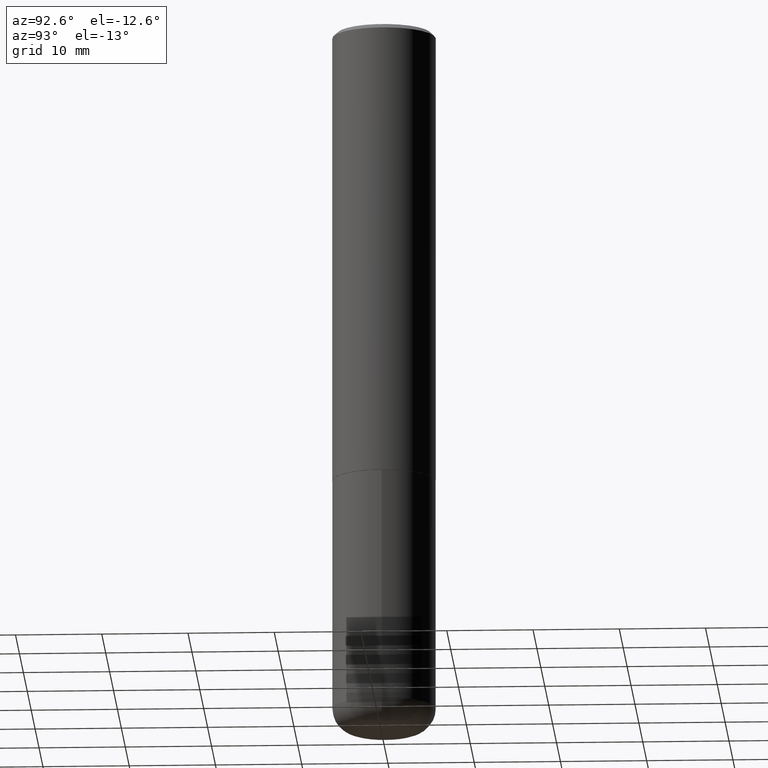
[diagram: clean part render]
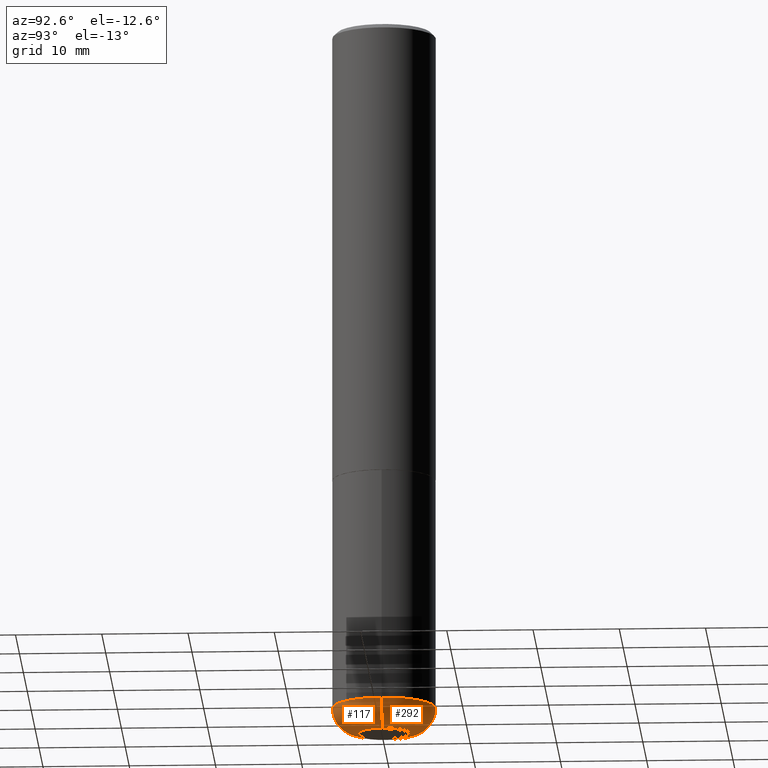
[diagram: same view with one multi-face feature highlighted, each face labeled with its STEP entity id]
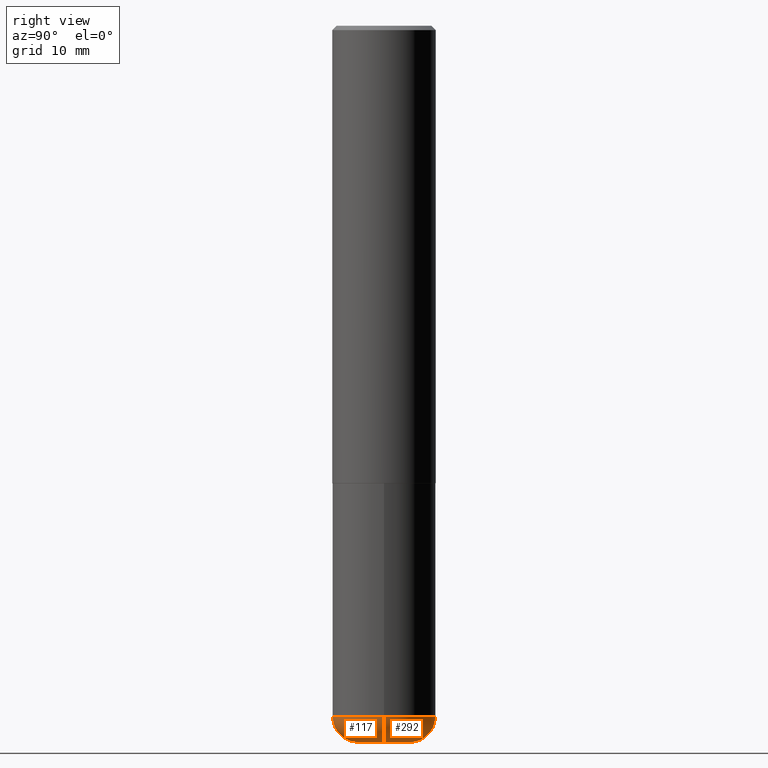
[diagram: same view with one multi-face feature highlighted, each face labeled with its STEP entity id]
A machine part, auxiliary view. The highlighted faces form ONE feature: a constant-radius fillet chain: 2 tangent blend faces with common blend radius 2.9997 mm. The faces share edges in the B-rep.
A second angle (right view) of the same feature is appended — it is thin or edge-on in the first view.
Their STEP definitions:
[1] entity #292 (Torus):
#22 = CIRCLE ( 'NONE', #170, 0.1181000000000000105 ) ;
#28 = CARTESIAN_POINT ( 'NONE',  ( 0.1180999999999999966, -1.182145751705512057E-14, -3.149600000000000399 ) ) ;
#38 = VERTEX_POINT ( 'NONE', #336 ) ;
#54 = CARTESIAN_POINT ( 'NONE',  ( -0.2361999999999998545, -9.318467682955017493E-15, -3.149600000000000399 ) ) ;
#60 = CIRCLE ( 'NONE', #299, 0.1180999999999997191 ) ;
#82 = AXIS2_PLACEMENT_3D ( 'NONE', #222, #350, #320 ) ;
#101 = ORIENTED_EDGE ( 'NONE', *, *, #257, .T. ) ;
#122 = DIRECTION ( 'NONE',  ( -2.445468806185136597E-29, 3.491481338843145583E-15, 1.000000000000000000 ) ) ;
#156 = DIRECTION ( 'NONE',  ( 1.000000000000000000, -6.982962677686273021E-15, 0.000000000000000000 ) ) ;
#170 = AXIS2_PLACEMENT_3D ( 'NONE', #219, #122, #411 ) ;
#186 = DIRECTION ( 'NONE',  ( 1.000000000000000000, -6.982962677686264344E-15, 4.883557194083111780E-29 ) ) ;
#191 = DIRECTION ( 'NONE',  ( -2.445468806185136597E-29, 3.491481338843145583E-15, 1.000000000000000000 ) ) ;
#195 = DIRECTION ( 'NONE',  ( -6.982962677686266711E-15, -1.000000000000000000, 3.491481338843145583E-15 ) ) ;
#219 = CARTESIAN_POINT ( 'NONE',  ( 7.991058417971169471E-29, -1.140911357093774486E-14, -3.267699999999999605 ) ) ;
#222 = CARTESIAN_POINT ( 'NONE',  ( -0.1180999999999999966, -1.015761865388769332E-14, -3.149600000000000399 ) ) ;
#224 = AXIS2_PLACEMENT_3D ( 'NONE', #322, #287, #414 ) ;
#230 = ORIENTED_EDGE ( 'NONE', *, *, #387, .T. ) ;
#233 = VERTEX_POINT ( 'NONE', #308 ) ;
#234 = EDGE_LOOP ( 'NONE', ( #101, #230, #259, #369 ) ) ;
#257 = EDGE_CURVE ( 'NONE', #233, #285, #22, .T. ) ;
#259 = ORIENTED_EDGE ( 'NONE', *, *, #344, .F. ) ;
#260 = CIRCLE ( 'NONE', #82, 0.1180999999999997191 ) ;
#285 = VERTEX_POINT ( 'NONE', #346 ) ;
#287 = DIRECTION ( 'NONE',  ( -2.445468806185136597E-29, 3.491481338843145583E-15, 1.000000000000000000 ) ) ;
#289 = VERTEX_POINT ( 'NONE', #54 ) ;
#292 = ADVANCED_FACE ( 'NONE', ( #418 ), #392, .T. ) ;
#299 = AXIS2_PLACEMENT_3D ( 'NONE', #28, #195, #156 ) ;
#308 = CARTESIAN_POINT ( 'NONE',  ( 0.1181000000000000105, -1.223380146317249313E-14, -3.267699999999999605 ) ) ;
#314 = EDGE_CURVE ( 'NONE', #233, #38, #60, .T. ) ;
#316 = AXIS2_PLACEMENT_3D ( 'NONE', #349, #191, #186 ) ;
#320 = DIRECTION ( 'NONE',  ( -1.000000000000000000, 7.105427357601005014E-15, 0.000000000000000000 ) ) ;
#322 = CARTESIAN_POINT ( 'NONE',  ( 7.702248551960706711E-29, -1.099676962482037231E-14, -3.149600000000000399 ) ) ;
#336 = CARTESIAN_POINT ( 'NONE',  ( 0.2361999999999998545, -1.264614540928986883E-14, -3.149600000000000399 ) ) ;
#344 = EDGE_CURVE ( 'NONE', #38, #289, #406, .T. ) ;
#346 = CARTESIAN_POINT ( 'NONE',  ( -0.1181000000000000383, -9.944215141480041685E-15, -3.267699999999999605 ) ) ;
#349 = CARTESIAN_POINT ( 'NONE',  ( 7.702248551960706711E-29, -1.099676962482037231E-14, -3.149600000000000399 ) ) ;
#350 = DIRECTION ( 'NONE',  ( 7.105427357601001859E-15, 1.000000000000000000, -3.491481338843145583E-15 ) ) ;
#369 = ORIENTED_EDGE ( 'NONE', *, *, #314, .F. ) ;
#387 = EDGE_CURVE ( 'NONE', #285, #289, #260, .T. ) ;
#392 = TOROIDAL_SURFACE ( 'NONE', #316, 0.1180999999999999966, 0.1180999999999997468 ) ;
#406 = CIRCLE ( 'NONE', #224, 0.2361999999999999933 ) ;
#411 = DIRECTION ( 'NONE',  ( 1.000000000000000000, -6.982962677686272233E-15, 0.000000000000000000 ) ) ;
#414 = DIRECTION ( 'NONE',  ( 1.000000000000000000, -6.982962677686265133E-15, 0.000000000000000000 ) ) ;
#418 = FACE_OUTER_BOUND ( 'NONE', #234, .T. ) ;
[2] entity #117 (Torus):
#15 = AXIS2_PLACEMENT_3D ( 'NONE', #74, #127, #210 ) ;
#28 = CARTESIAN_POINT ( 'NONE',  ( 0.1180999999999999966, -1.182145751705512057E-14, -3.149600000000000399 ) ) ;
#38 = VERTEX_POINT ( 'NONE', #336 ) ;
#46 = FACE_OUTER_BOUND ( 'NONE', #266, .T. ) ;
#50 = DIRECTION ( 'NONE',  ( -2.445468806185136597E-29, 3.491481338843145583E-15, 1.000000000000000000 ) ) ;
#54 = CARTESIAN_POINT ( 'NONE',  ( -0.2361999999999998545, -9.318467682955017493E-15, -3.149600000000000399 ) ) ;
#58 = EDGE_CURVE ( 'NONE', #289, #38, #376, .T. ) ;
#60 = CIRCLE ( 'NONE', #299, 0.1180999999999997191 ) ;
#74 = CARTESIAN_POINT ( 'NONE',  ( 7.702248551960706711E-29, -1.099676962482037231E-14, -3.149600000000000399 ) ) ;
#82 = AXIS2_PLACEMENT_3D ( 'NONE', #222, #350, #320 ) ;
#92 = ORIENTED_EDGE ( 'NONE', *, *, #137, .T. ) ;
#116 = DIRECTION ( 'NONE',  ( 1.000000000000000000, -6.982962677686272233E-15, 0.000000000000000000 ) ) ;
#117 = ADVANCED_FACE ( 'NONE', ( #46 ), #359, .T. ) ;
#127 = DIRECTION ( 'NONE',  ( -2.445468806185136597E-29, 3.491481338843145583E-15, 1.000000000000000000 ) ) ;
#137 = EDGE_CURVE ( 'NONE', #285, #233, #278, .T. ) ;
#142 = DIRECTION ( 'NONE',  ( 1.000000000000000000, -6.982962677686264344E-15, 4.883557194083111780E-29 ) ) ;
#154 = AXIS2_PLACEMENT_3D ( 'NONE', #249, #307, #142 ) ;
#156 = DIRECTION ( 'NONE',  ( 1.000000000000000000, -6.982962677686273021E-15, 0.000000000000000000 ) ) ;
#176 = CARTESIAN_POINT ( 'NONE',  ( 7.991058417971169471E-29, -1.140911357093774486E-14, -3.267699999999999605 ) ) ;
#195 = DIRECTION ( 'NONE',  ( -6.982962677686266711E-15, -1.000000000000000000, 3.491481338843145583E-15 ) ) ;
#210 = DIRECTION ( 'NONE',  ( 1.000000000000000000, -6.982962677686265133E-15, 0.000000000000000000 ) ) ;
#222 = CARTESIAN_POINT ( 'NONE',  ( -0.1180999999999999966, -1.015761865388769332E-14, -3.149600000000000399 ) ) ;
#233 = VERTEX_POINT ( 'NONE', #308 ) ;
#249 = CARTESIAN_POINT ( 'NONE',  ( 7.702248551960706711E-29, -1.099676962482037231E-14, -3.149600000000000399 ) ) ;
#260 = CIRCLE ( 'NONE', #82, 0.1180999999999997191 ) ;
#266 = EDGE_LOOP ( 'NONE', ( #358, #92, #417, #324 ) ) ;
#278 = CIRCLE ( 'NONE', #365, 0.1181000000000000105 ) ;
#285 = VERTEX_POINT ( 'NONE', #346 ) ;
#289 = VERTEX_POINT ( 'NONE', #54 ) ;
#299 = AXIS2_PLACEMENT_3D ( 'NONE', #28, #195, #156 ) ;
#307 = DIRECTION ( 'NONE',  ( -2.445468806185136597E-29, 3.491481338843145583E-15, 1.000000000000000000 ) ) ;
#308 = CARTESIAN_POINT ( 'NONE',  ( 0.1181000000000000105, -1.223380146317249313E-14, -3.267699999999999605 ) ) ;
#314 = EDGE_CURVE ( 'NONE', #233, #38, #60, .T. ) ;
#320 = DIRECTION ( 'NONE',  ( -1.000000000000000000, 7.105427357601005014E-15, 0.000000000000000000 ) ) ;
#324 = ORIENTED_EDGE ( 'NONE', *, *, #58, .F. ) ;
#336 = CARTESIAN_POINT ( 'NONE',  ( 0.2361999999999998545, -1.264614540928986883E-14, -3.149600000000000399 ) ) ;
#346 = CARTESIAN_POINT ( 'NONE',  ( -0.1181000000000000383, -9.944215141480041685E-15, -3.267699999999999605 ) ) ;
#350 = DIRECTION ( 'NONE',  ( 7.105427357601001859E-15, 1.000000000000000000, -3.491481338843145583E-15 ) ) ;
#358 = ORIENTED_EDGE ( 'NONE', *, *, #387, .F. ) ;
#359 = TOROIDAL_SURFACE ( 'NONE', #154, 0.1180999999999999966, 0.1180999999999997468 ) ;
#365 = AXIS2_PLACEMENT_3D ( 'NONE', #176, #50, #116 ) ;
#376 = CIRCLE ( 'NONE', #15, 0.2361999999999999933 ) ;
#387 = EDGE_CURVE ( 'NONE', #285, #289, #260, .T. ) ;
#417 = ORIENTED_EDGE ( 'NONE', *, *, #314, .T. ) ;